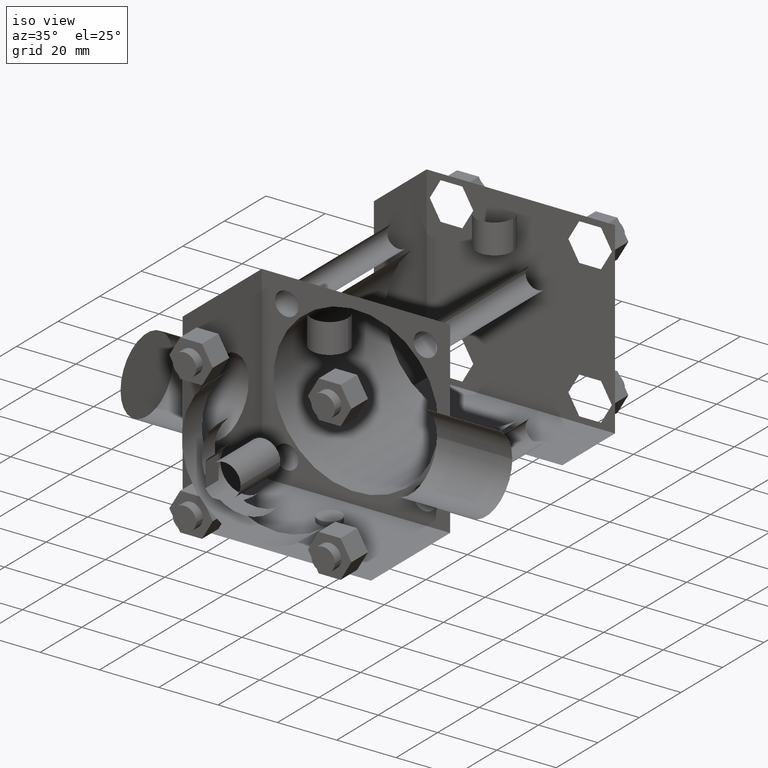
[diagram: clean part render]
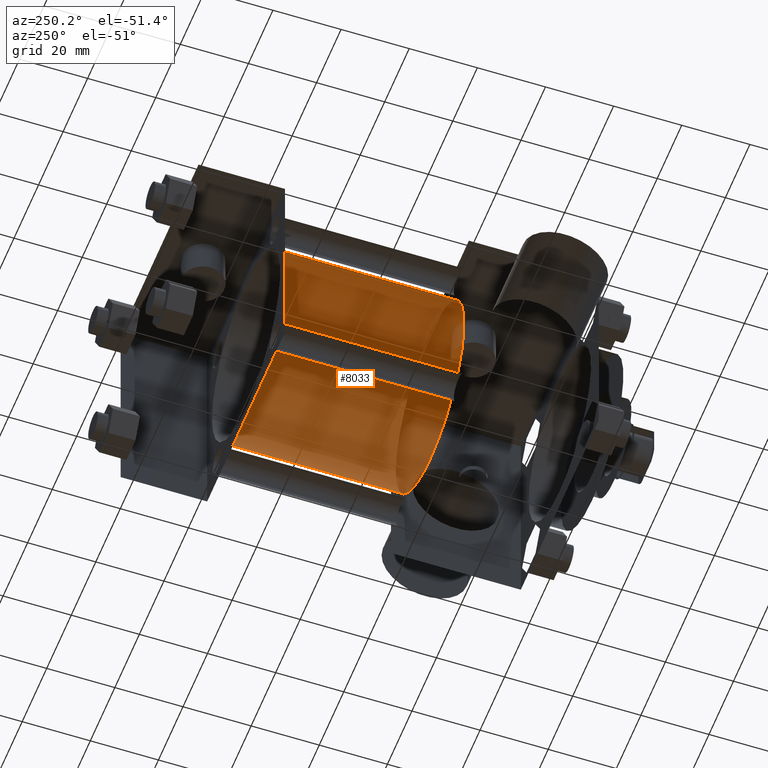
[diagram: tour spotlight — one face highlighted and labeled with its STEP entity id]
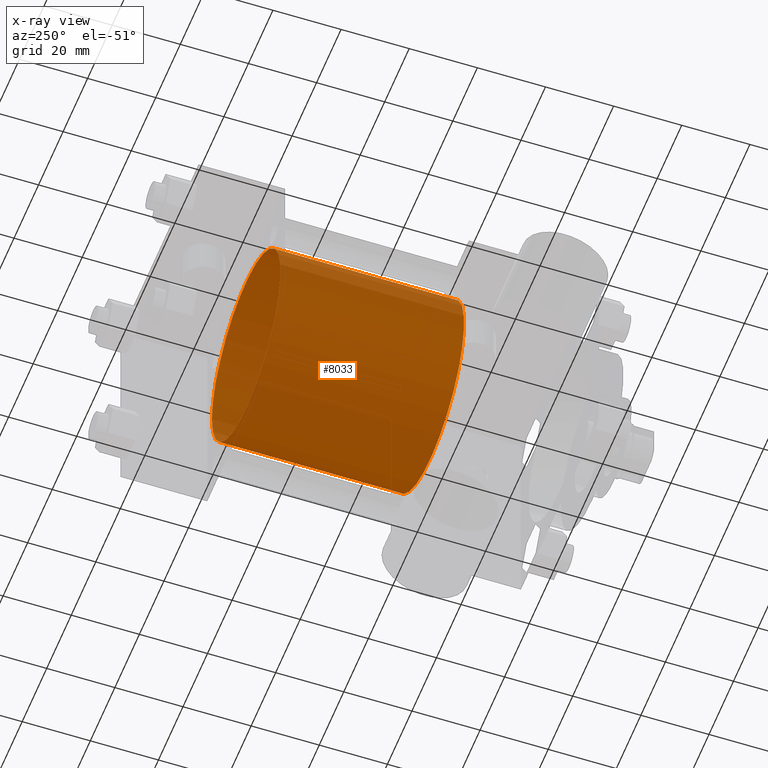
[diagram: x-ray of the same camera — body ghosted, this tour face saturated]
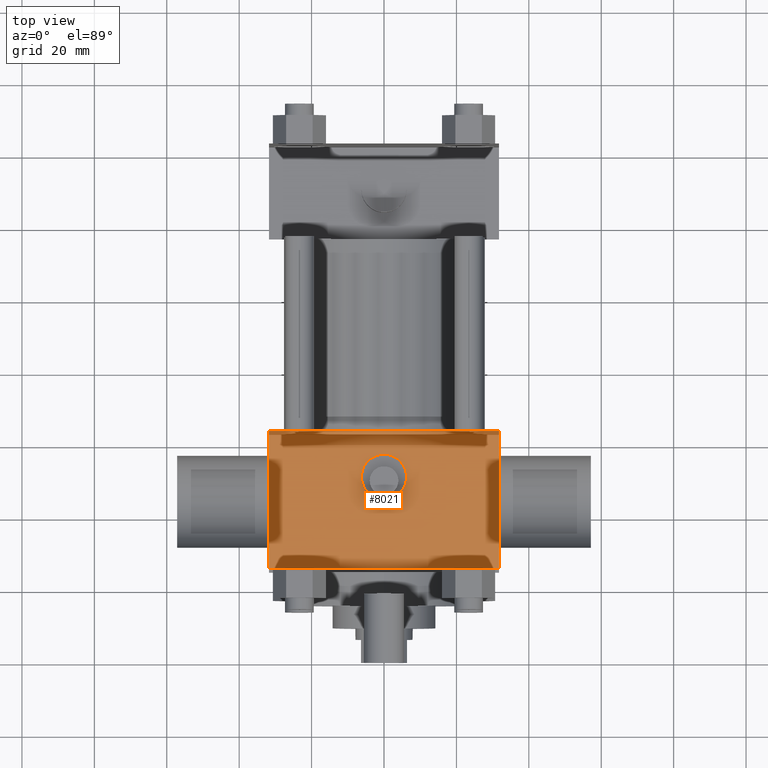
[diagram: tour spotlight — one face highlighted and labeled with its STEP entity id]
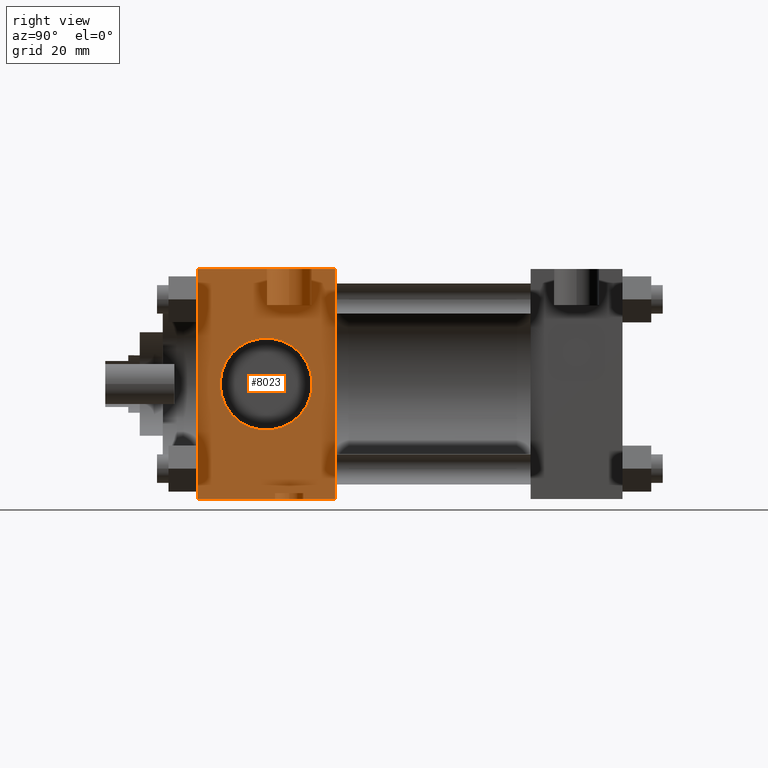
[diagram: tour spotlight — one face highlighted and labeled with its STEP entity id]
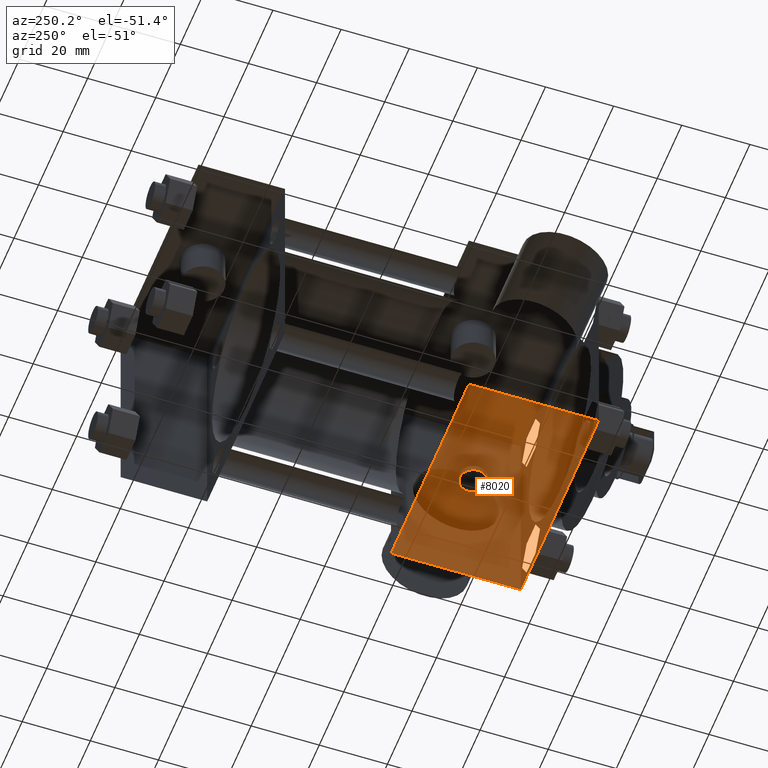
[diagram: tour spotlight — one face highlighted and labeled with its STEP entity id]
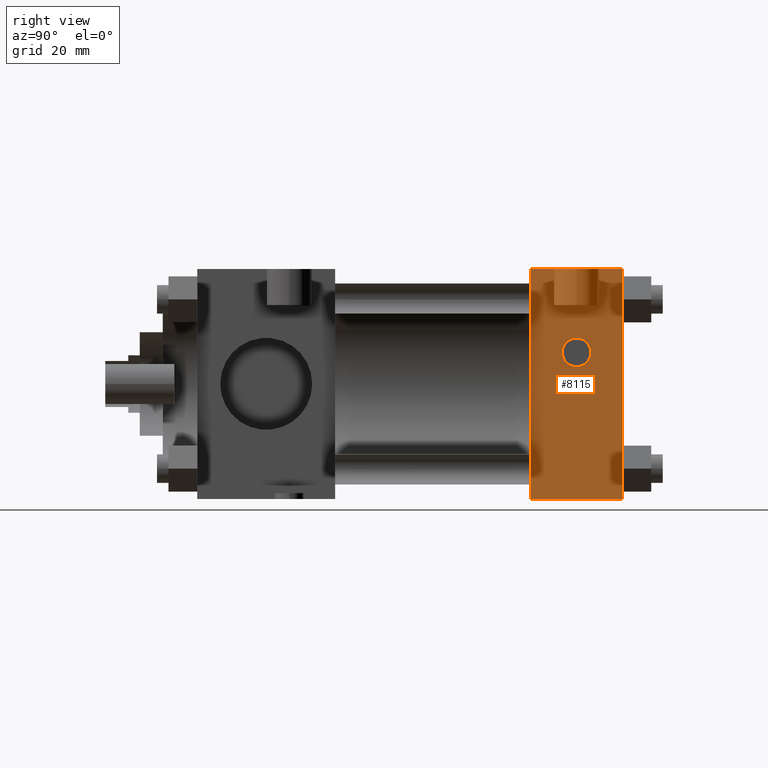
[diagram: tour spotlight — one face highlighted and labeled with its STEP entity id]
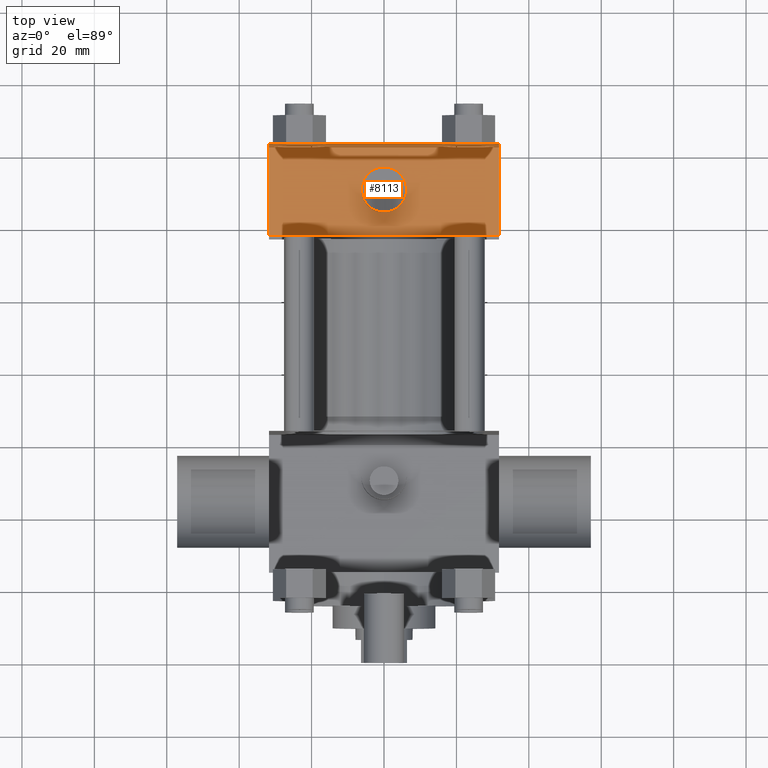
[diagram: tour spotlight — one face highlighted and labeled with its STEP entity id]
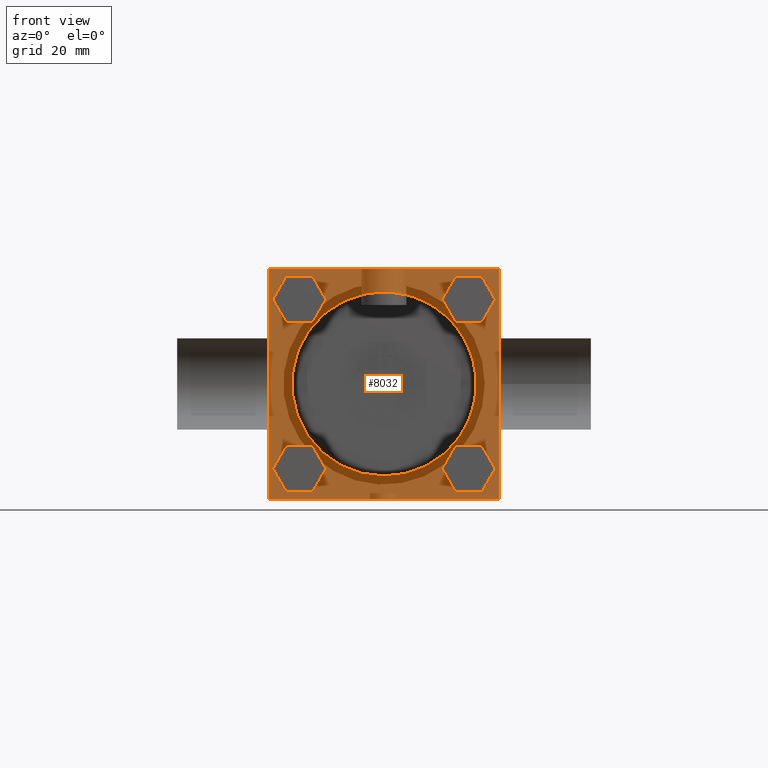
[diagram: tour spotlight — one face highlighted and labeled with its STEP entity id]
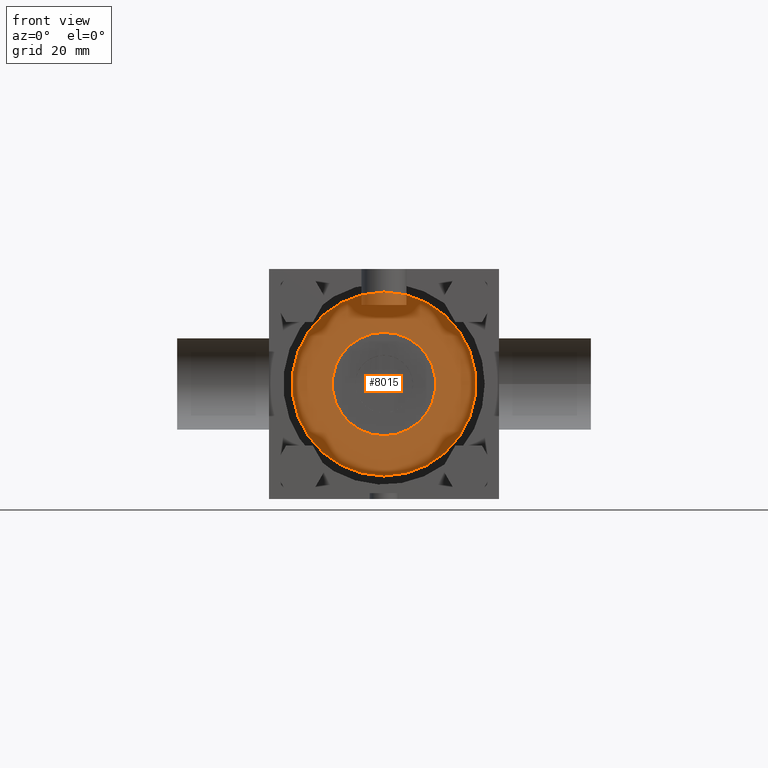
[diagram: tour spotlight — one face highlighted and labeled with its STEP entity id]
A machine part: a face-by-face anatomy tour. The part has 122 B-rep faces; the first image is the clean iso view, then the 8 largest visible faces are spotlighted one at a time (largest first), each with its STEP entity span.

Face 1 — auxiliary view, entity #8033. An x-ray twin of the same camera follows (body ghosted, this face saturated) — the face is partly hidden behind the body. In plain terms, the highlighted cylindrical surface (bore or boss wall) has radius 27.813 mm, axis along (0, -1, 0).
Definition (entity closure, byte-faithful):
#503=EDGE_CURVE('',#509,#509,#504,.T.);
#504=CIRCLE('',#505,2.781300000E+001);
#505=AXIS2_PLACEMENT_3D('',#506,#507,#508);
#506=CARTESIAN_POINT('',(0.000000000E+000,6.350000000E+001,0.000000000E+000));
#507=DIRECTION('',(0.0E+000,1.0E+000,0.0E+000));
#508=DIRECTION('',(1.0E+000,0.0E+000,0.0E+000));
#509=VERTEX_POINT('',#510);
#510=CARTESIAN_POINT('',(2.781300000E+001,6.350000000E+001,0.000000000E+000));
#2364=FACE_OUTER_BOUND('',#2366,.T.);
#2365=FACE_BOUND('',#2367,.T.);
#2366=EDGE_LOOP('',(#2368));
#2367=EDGE_LOOP('',(#2377));
#2368=ORIENTED_EDGE('',*,*,#2369,.F.);
#2369=EDGE_CURVE('',#2375,#2375,#2370,.T.);
#2370=CIRCLE('',#2371,2.781300000E+001);
#2371=AXIS2_PLACEMENT_3D('',#2372,#2373,#2374);
#2372=CARTESIAN_POINT('',(0.000000000E+000,1.174750000E+002,0.000000000E+000));
#2373=DIRECTION('',(0.0E+000,1.0E+000,0.0E+000));
#2374=DIRECTION('',(1.0E+000,0.0E+000,0.0E+000));
#2375=VERTEX_POINT('',#2376);
#2376=CARTESIAN_POINT('',(2.781300000E+001,1.174750000E+002,0.000000000E+000));
#2377=ORIENTED_EDGE('',*,*,#503,.F.);
#2378=CYLINDRICAL_SURFACE('',#2379,2.781300000E+001);
#2379=AXIS2_PLACEMENT_3D('',#2380,#2381,#2382);
#2380=CARTESIAN_POINT('',(0.000000000E+000,1.174750000E+002,0.000000000E+000));
#2381=DIRECTION('',(0.0E+000,-1.0E+000,0.0E+000));
#2382=DIRECTION('',(0.0E+000,0.0E+000,-1.0E+000));
#8033=ADVANCED_FACE('',(#2364,#2365),#2378,.T.);

Face 2 — top view, entity #8021. In plain terms, the highlighted planar face has unit normal (0, 0, 1).
Definition (entity closure, byte-faithful):
#529=VERTEX_POINT('',#530);
#530=CARTESIAN_POINT('',(-3.175000000E+001,6.350000000E+001,3.175000000E+001));
#531=EDGE_CURVE('',#536,#529,#532,.T.);
#532=LINE('',#533,#534);
#533=CARTESIAN_POINT('',(3.175000000E+001,6.350000000E+001,3.175000000E+001));
#534=VECTOR('',#535,1.0E+000);
#535=DIRECTION('',(-1.0E+000,0.0E+000,0.0E+000));
#536=VERTEX_POINT('',#537);
#537=CARTESIAN_POINT('',(3.175000000E+001,6.350000000E+001,3.175000000E+001));
#625=FACE_OUTER_BOUND('',#627,.T.);
#626=FACE_BOUND('',#628,.T.);
#627=EDGE_LOOP('',(#629,#630,#631,#632));
#628=EDGE_LOOP('',(#652));
#629=ORIENTED_EDGE('',*,*,#633,.T.);
#630=ORIENTED_EDGE('',*,*,#640,.F.);
#631=ORIENTED_EDGE('',*,*,#647,.F.);
#632=ORIENTED_EDGE('',*,*,#531,.T.);
#633=EDGE_CURVE('',#529,#638,#634,.T.);
#634=LINE('',#635,#636);
#635=CARTESIAN_POINT('',(-3.175000000E+001,6.350000000E+001,3.175000000E+001));
#636=VECTOR('',#637,1.0E+000);
#637=DIRECTION('',(0.0E+000,-1.0E+000,0.0E+000));
#638=VERTEX_POINT('',#639);
#639=CARTESIAN_POINT('',(-3.175000000E+001,2.540000000E+001,3.175000000E+001));
#640=EDGE_CURVE('',#645,#638,#641,.T.);
#641=LINE('',#642,#643);
#642=CARTESIAN_POINT('',(3.175000000E+001,2.540000000E+001,3.175000000E+001));
#643=VECTOR('',#644,1.0E+000);
#644=DIRECTION('',(-1.0E+000,0.0E+000,0.0E+000));
#645=VERTEX_POINT('',#646);
#646=CARTESIAN_POINT('',(3.175000000E+001,2.540000000E+001,3.175000000E+001));
#647=EDGE_CURVE('',#536,#645,#648,.T.);
#648=LINE('',#649,#650);
#649=CARTESIAN_POINT('',(3.175000000E+001,6.350000000E+001,3.175000000E+001));
#650=VECTOR('',#651,1.0E+000);
#651=DIRECTION('',(0.0E+000,-1.0E+000,0.0E+000));
#652=ORIENTED_EDGE('',*,*,#653,.T.);
#653=EDGE_CURVE('',#659,#659,#654,.T.);
#654=CIRCLE('',#655,6.243320000E+000);
#655=AXIS2_PLACEMENT_3D('',#656,#657,#658);
#656=CARTESIAN_POINT('',(0.000000000E+000,5.080000000E+001,3.175000000E+001));
#657=DIRECTION('',(0.0E+000,0.0E+000,-1.0E+000));
#658=DIRECTION('',(1.0E+000,0.0E+000,0.0E+000));
#659=VERTEX_POINT('',#660);
#660=CARTESIAN_POINT('',(6.243320000E+000,5.080000000E+001,3.175000000E+001));
#661=PLANE('',#662);
#662=AXIS2_PLACEMENT_3D('',#663,#664,#665);
#663=CARTESIAN_POINT('',(3.175000000E+001,6.350000000E+001,3.175000000E+001));
#664=DIRECTION('',(0.0E+000,0.0E+000,1.0E+000));
#665=DIRECTION('',(1.0E+000,0.0E+000,0.0E+000));
#8021=ADVANCED_FACE('',(#625,#626),#661,.T.);

Face 3 — right view, entity #8023. In plain terms, the highlighted planar face has unit normal (1, 0, 0).
Definition (entity closure, byte-faithful):
#521=VERTEX_POINT('',#523);
#523=CARTESIAN_POINT('',(3.175000000E+001,6.350000000E+001,-3.175000000E+001));
#536=VERTEX_POINT('',#537);
#537=CARTESIAN_POINT('',(3.175000000E+001,6.350000000E+001,3.175000000E+001));
#538=EDGE_CURVE('',#521,#536,#539,.T.);
#539=LINE('',#540,#541);
#540=CARTESIAN_POINT('',(3.175000000E+001,6.350000000E+001,-3.175000000E+001));
#541=VECTOR('',#542,1.0E+000);
#542=DIRECTION('',(0.0E+000,0.0E+000,1.0E+000));
#592=EDGE_CURVE('',#521,#597,#593,.T.);
#593=LINE('',#594,#595);
#594=CARTESIAN_POINT('',(3.175000000E+001,6.350000000E+001,-3.175000000E+001));
#595=VECTOR('',#596,1.0E+000);
#596=DIRECTION('',(0.0E+000,-1.0E+000,0.0E+000));
#597=VERTEX_POINT('',#598);
#598=CARTESIAN_POINT('',(3.175000000E+001,2.540000000E+001,-3.175000000E+001));
#645=VERTEX_POINT('',#646);
#646=CARTESIAN_POINT('',(3.175000000E+001,2.540000000E+001,3.175000000E+001));
#647=EDGE_CURVE('',#536,#645,#648,.T.);
#648=LINE('',#649,#650);
#649=CARTESIAN_POINT('',(3.175000000E+001,6.350000000E+001,3.175000000E+001));
#650=VECTOR('',#651,1.0E+000);
#651=DIRECTION('',(0.0E+000,-1.0E+000,0.0E+000));
#693=FACE_OUTER_BOUND('',#695,.T.);
#694=FACE_BOUND('',#696,.T.);
#695=EDGE_LOOP('',(#697,#698,#699,#700));
#696=EDGE_LOOP('',(#706));
#697=ORIENTED_EDGE('',*,*,#647,.T.);
#698=ORIENTED_EDGE('',*,*,#701,.F.);
#699=ORIENTED_EDGE('',*,*,#592,.F.);
#700=ORIENTED_EDGE('',*,*,#538,.T.);
#701=EDGE_CURVE('',#597,#645,#702,.T.);
#702=LINE('',#703,#704);
#703=CARTESIAN_POINT('',(3.175000000E+001,2.540000000E+001,-3.175000000E+001));
#704=VECTOR('',#705,1.0E+000);
#705=DIRECTION('',(0.0E+000,0.0E+000,1.0E+000));
#706=ORIENTED_EDGE('',*,*,#707,.T.);
#707=EDGE_CURVE('',#713,#713,#708,.T.);
#708=CIRCLE('',#709,1.270000000E+001);
#709=AXIS2_PLACEMENT_3D('',#710,#711,#712);
#710=CARTESIAN_POINT('',(3.175000000E+001,4.445000000E+001,0.000000000E+000));
#711=DIRECTION('',(-1.0E+000,0.0E+000,0.0E+000));
#712=DIRECTION('',(0.0E+000,1.0E+000,0.0E+000));
#713=VERTEX_POINT('',#714);
#714=CARTESIAN_POINT('',(3.175000000E+001,5.715000000E+001,0.000000000E+000));
#715=PLANE('',#716);
#716=AXIS2_PLACEMENT_3D('',#717,#718,#719);
#717=CARTESIAN_POINT('',(3.175000000E+001,6.350000000E+001,-3.175000000E+001));
#718=DIRECTION('',(1.0E+000,0.0E+000,0.0E+000));
#719=DIRECTION('',(0.0E+000,0.0E+000,-1.0E+000));
#8023=ADVANCED_FACE('',(#693,#694),#715,.T.);

Face 4 — auxiliary view, entity #8020. In plain terms, the highlighted planar face has unit normal (0, 0, -1).
Definition (entity closure, byte-faithful):
#515=EDGE_CURVE('',#520,#521,#516,.T.);
#516=LINE('',#517,#518);
#517=CARTESIAN_POINT('',(-3.175000000E+001,6.350000000E+001,-3.175000000E+001));
#518=VECTOR('',#519,1.0E+000);
#519=DIRECTION('',(1.0E+000,0.0E+000,0.0E+000));
#520=VERTEX_POINT('',#522);
#521=VERTEX_POINT('',#523);
#522=CARTESIAN_POINT('',(-3.175000000E+001,6.350000000E+001,-3.175000000E+001));
#523=CARTESIAN_POINT('',(3.175000000E+001,6.350000000E+001,-3.175000000E+001));
#584=FACE_OUTER_BOUND('',#586,.T.);
#585=FACE_BOUND('',#587,.T.);
#586=EDGE_LOOP('',(#588,#589,#590,#591));
#587=EDGE_LOOP('',(#611));
#588=ORIENTED_EDGE('',*,*,#592,.T.);
#589=ORIENTED_EDGE('',*,*,#599,.F.);
#590=ORIENTED_EDGE('',*,*,#606,.F.);
#591=ORIENTED_EDGE('',*,*,#515,.T.);
#592=EDGE_CURVE('',#521,#597,#593,.T.);
#593=LINE('',#594,#595);
#594=CARTESIAN_POINT('',(3.175000000E+001,6.350000000E+001,-3.175000000E+001));
#595=VECTOR('',#596,1.0E+000);
#596=DIRECTION('',(0.0E+000,-1.0E+000,0.0E+000));
#597=VERTEX_POINT('',#598);
#598=CARTESIAN_POINT('',(3.175000000E+001,2.540000000E+001,-3.175000000E+001));
#599=EDGE_CURVE('',#604,#597,#600,.T.);
#600=LINE('',#601,#602);
#601=CARTESIAN_POINT('',(-3.175000000E+001,2.540000000E+001,-3.175000000E+001));
#602=VECTOR('',#603,1.0E+000);
#603=DIRECTION('',(1.0E+000,0.0E+000,0.0E+000));
#604=VERTEX_POINT('',#605);
#605=CARTESIAN_POINT('',(-3.175000000E+001,2.540000000E+001,-3.175000000E+001));
#606=EDGE_CURVE('',#520,#604,#607,.T.);
#607=LINE('',#608,#609);
#608=CARTESIAN_POINT('',(-3.175000000E+001,6.350000000E+001,-3.175000000E+001));
#609=VECTOR('',#610,1.0E+000);
#610=DIRECTION('',(0.0E+000,-1.0E+000,0.0E+000));
#611=ORIENTED_EDGE('',*,*,#612,.T.);
#612=EDGE_CURVE('',#618,#618,#613,.T.);
#613=CIRCLE('',#614,3.968750000E+000);
#614=AXIS2_PLACEMENT_3D('',#615,#616,#617);
#615=CARTESIAN_POINT('',(0.000000000E+000,5.080000000E+001,-3.175000000E+001));
#616=DIRECTION('',(0.0E+000,0.0E+000,1.0E+000));
#617=DIRECTION('',(1.0E+000,0.0E+000,0.0E+000));
#618=VERTEX_POINT('',#619);
#619=CARTESIAN_POINT('',(3.968750000E+000,5.080000000E+001,-3.175000000E+001));
#620=PLANE('',#621);
#621=AXIS2_PLACEMENT_3D('',#622,#623,#624);
#622=CARTESIAN_POINT('',(-3.175000000E+001,6.350000000E+001,-3.175000000E+001));
#623=DIRECTION('',(0.0E+000,0.0E+000,-1.0E+000));
#624=DIRECTION('',(-1.0E+000,0.0E+000,0.0E+000));
#8020=ADVANCED_FACE('',(#584,#585),#620,.T.);

Face 5 — right view, entity #8115. In plain terms, the highlighted planar face has unit normal (1, 0, 0).
Definition (entity closure, byte-faithful):
#4475=VERTEX_POINT('',#4477);
#4477=CARTESIAN_POINT('',(3.175000000E+001,1.428750000E+002,-3.175000000E+001));
#4490=VERTEX_POINT('',#4491);
#4491=CARTESIAN_POINT('',(3.175000000E+001,1.428750000E+002,3.175000000E+001));
#4492=EDGE_CURVE('',#4475,#4490,#4493,.T.);
#4493=LINE('',#4494,#4495);
#4494=CARTESIAN_POINT('',(3.175000000E+001,1.428750000E+002,-3.175000000E+001));
#4495=VECTOR('',#4496,1.0E+000);
#4496=DIRECTION('',(0.0E+000,0.0E+000,1.0E+000));
#4648=VERTEX_POINT('',#4650);
#4650=CARTESIAN_POINT('',(3.175000000E+001,1.174750000E+002,-3.175000000E+001));
#4651=EDGE_CURVE('',#4648,#4656,#4652,.T.);
#4652=LINE('',#4653,#4654);
#4653=CARTESIAN_POINT('',(3.175000000E+001,1.174750000E+002,-3.175000000E+001));
#4654=VECTOR('',#4655,1.0E+000);
#4655=DIRECTION('',(0.0E+000,0.0E+000,1.0E+000));
#4656=VERTEX_POINT('',#4657);
#4657=CARTESIAN_POINT('',(3.175000000E+001,1.174750000E+002,3.175000000E+001));
#4697=EDGE_CURVE('',#4475,#4648,#4698,.T.);
#4698=LINE('',#4699,#4700);
#4699=CARTESIAN_POINT('',(3.175000000E+001,1.428750000E+002,-3.175000000E+001));
#4700=VECTOR('',#4701,1.0E+000);
#4701=DIRECTION('',(0.0E+000,-1.0E+000,0.0E+000));
#4724=EDGE_CURVE('',#4490,#4656,#4725,.T.);
#4725=LINE('',#4726,#4727);
#4726=CARTESIAN_POINT('',(3.175000000E+001,1.428750000E+002,3.175000000E+001));
#4727=VECTOR('',#4728,1.0E+000);
#4728=DIRECTION('',(0.0E+000,-1.0E+000,0.0E+000));
#4770=FACE_OUTER_BOUND('',#4772,.T.);
#4771=FACE_BOUND('',#4773,.T.);
#4772=EDGE_LOOP('',(#4774,#4775,#4776,#4777));
#4773=EDGE_LOOP('',(#4778));
#4774=ORIENTED_EDGE('',*,*,#4651,.F.);
#4775=ORIENTED_EDGE('',*,*,#4697,.F.);
#4776=ORIENTED_EDGE('',*,*,#4492,.T.);
#4777=ORIENTED_EDGE('',*,*,#4724,.T.);
#4778=ORIENTED_EDGE('',*,*,#4779,.T.);
#4779=EDGE_CURVE('',#4785,#4785,#4780,.T.);
#4780=CIRCLE('',#4781,3.968750000E+000);
#4781=AXIS2_PLACEMENT_3D('',#4782,#4783,#4784);
#4782=CARTESIAN_POINT('',(3.175000000E+001,1.301750000E+002,8.732520000E+000));
#4783=DIRECTION('',(-1.0E+000,0.0E+000,0.0E+000));
#4784=DIRECTION('',(0.0E+000,1.0E+000,0.0E+000));
#4785=VERTEX_POINT('',#4786);
#4786=CARTESIAN_POINT('',(3.175000000E+001,1.341437500E+002,8.732520000E+000));
#4787=PLANE('',#4788);
#4788=AXIS2_PLACEMENT_3D('',#4789,#4790,#4791);
#4789=CARTESIAN_POINT('',(3.175000000E+001,1.428750000E+002,-3.175000000E+001));
#4790=DIRECTION('',(1.0E+000,0.0E+000,0.0E+000));
#4791=DIRECTION('',(0.0E+000,0.0E+000,-1.0E+000));
#8115=ADVANCED_FACE('',(#4770,#4771),#4787,.T.);

Face 6 — top view, entity #8113. In plain terms, the highlighted planar face has unit normal (0, 0, 1).
Definition (entity closure, byte-faithful):
#4483=VERTEX_POINT('',#4484);
#4484=CARTESIAN_POINT('',(-3.175000000E+001,1.428750000E+002,3.175000000E+001));
#4485=EDGE_CURVE('',#4490,#4483,#4486,.T.);
#4486=LINE('',#4487,#4488);
#4487=CARTESIAN_POINT('',(3.175000000E+001,1.428750000E+002,3.175000000E+001));
#4488=VECTOR('',#4489,1.0E+000);
#4489=DIRECTION('',(-1.0E+000,0.0E+000,0.0E+000));
#4490=VERTEX_POINT('',#4491);
#4491=CARTESIAN_POINT('',(3.175000000E+001,1.428750000E+002,3.175000000E+001));
#4656=VERTEX_POINT('',#4657);
#4657=CARTESIAN_POINT('',(3.175000000E+001,1.174750000E+002,3.175000000E+001));
#4658=EDGE_CURVE('',#4656,#4663,#4659,.T.);
#4659=LINE('',#4660,#4661);
#4660=CARTESIAN_POINT('',(3.175000000E+001,1.174750000E+002,3.175000000E+001));
#4661=VECTOR('',#4662,1.0E+000);
#4662=DIRECTION('',(-1.0E+000,0.0E+000,0.0E+000));
#4663=VERTEX_POINT('',#4664);
#4664=CARTESIAN_POINT('',(-3.175000000E+001,1.174750000E+002,3.175000000E+001));
#4716=FACE_OUTER_BOUND('',#4718,.T.);
#4717=FACE_BOUND('',#4719,.T.);
#4718=EDGE_LOOP('',(#4720,#4721,#4722,#4723));
#4719=EDGE_LOOP('',(#4734));
#4720=ORIENTED_EDGE('',*,*,#4658,.F.);
#4721=ORIENTED_EDGE('',*,*,#4724,.F.);
#4722=ORIENTED_EDGE('',*,*,#4485,.T.);
#4723=ORIENTED_EDGE('',*,*,#4729,.T.);
#4724=EDGE_CURVE('',#4490,#4656,#4725,.T.);
#4725=LINE('',#4726,#4727);
#4726=CARTESIAN_POINT('',(3.175000000E+001,1.428750000E+002,3.175000000E+001));
#4727=VECTOR('',#4728,1.0E+000);
#4728=DIRECTION('',(0.0E+000,-1.0E+000,0.0E+000));
#4729=EDGE_CURVE('',#4483,#4663,#4730,.T.);
#4730=LINE('',#4731,#4732);
#4731=CARTESIAN_POINT('',(-3.175000000E+001,1.428750000E+002,3.175000000E+001));
#4732=VECTOR('',#4733,1.0E+000);
#4733=DIRECTION('',(0.0E+000,-1.0E+000,0.0E+000));
#4734=ORIENTED_EDGE('',*,*,#4735,.T.);
#4735=EDGE_CURVE('',#4741,#4741,#4736,.T.);
#4736=CIRCLE('',#4737,6.243320000E+000);
#4737=AXIS2_PLACEMENT_3D('',#4738,#4739,#4740);
#4738=CARTESIAN_POINT('',(0.000000000E+000,1.301750000E+002,3.175000000E+001));
#4739=DIRECTION('',(0.0E+000,0.0E+000,-1.0E+000));
#4740=DIRECTION('',(1.0E+000,0.0E+000,0.0E+000));
#4741=VERTEX_POINT('',#4742);
#4742=CARTESIAN_POINT('',(6.243320000E+000,1.301750000E+002,3.175000000E+001));
#4743=PLANE('',#4744);
#4744=AXIS2_PLACEMENT_3D('',#4745,#4746,#4747);
#4745=CARTESIAN_POINT('',(3.175000000E+001,1.428750000E+002,3.175000000E+001));
#4746=DIRECTION('',(0.0E+000,0.0E+000,1.0E+000));
#4747=DIRECTION('',(1.0E+000,0.0E+000,0.0E+000));
#8113=ADVANCED_FACE('',(#4716,#4717),#4743,.T.);

Face 7 — front view, entity #8032. In plain terms, the highlighted planar face has unit normal (0, 1, 0).
Definition (entity closure, byte-faithful):
#451=EDGE_CURVE('',#457,#457,#452,.T.);
#452=CIRCLE('',#453,2.540000000E+001);
#453=AXIS2_PLACEMENT_3D('',#454,#455,#456);
#454=CARTESIAN_POINT('',(0.000000000E+000,2.540000000E+001,0.000000000E+000));
#455=DIRECTION('',(0.0E+000,1.0E+000,0.0E+000));
#456=DIRECTION('',(1.0E+000,0.0E+000,0.0E+000));
#457=VERTEX_POINT('',#458);
#458=CARTESIAN_POINT('',(2.540000000E+001,2.540000000E+001,0.000000000E+000));
#597=VERTEX_POINT('',#598);
#598=CARTESIAN_POINT('',(3.175000000E+001,2.540000000E+001,-3.175000000E+001));
#599=EDGE_CURVE('',#604,#597,#600,.T.);
#600=LINE('',#601,#602);
#601=CARTESIAN_POINT('',(-3.175000000E+001,2.540000000E+001,-3.175000000E+001));
#602=VECTOR('',#603,1.0E+000);
#603=DIRECTION('',(1.0E+000,0.0E+000,0.0E+000));
#604=VERTEX_POINT('',#605);
#605=CARTESIAN_POINT('',(-3.175000000E+001,2.540000000E+001,-3.175000000E+001));
#638=VERTEX_POINT('',#639);
#639=CARTESIAN_POINT('',(-3.175000000E+001,2.540000000E+001,3.175000000E+001));
#640=EDGE_CURVE('',#645,#638,#641,.T.);
#641=LINE('',#642,#643);
#642=CARTESIAN_POINT('',(3.175000000E+001,2.540000000E+001,3.175000000E+001));
#643=VECTOR('',#644,1.0E+000);
#644=DIRECTION('',(-1.0E+000,0.0E+000,0.0E+000));
#645=VERTEX_POINT('',#646);
#646=CARTESIAN_POINT('',(3.175000000E+001,2.540000000E+001,3.175000000E+001));
#674=EDGE_CURVE('',#638,#604,#675,.T.);
#675=LINE('',#676,#677);
#676=CARTESIAN_POINT('',(-3.175000000E+001,2.540000000E+001,3.175000000E+001));
#677=VECTOR('',#678,1.0E+000);
#678=DIRECTION('',(0.0E+000,0.0E+000,-1.0E+000));
#701=EDGE_CURVE('',#597,#645,#702,.T.);
#702=LINE('',#703,#704);
#703=CARTESIAN_POINT('',(3.175000000E+001,2.540000000E+001,-3.175000000E+001));
#704=VECTOR('',#705,1.0E+000);
#705=DIRECTION('',(0.0E+000,0.0E+000,1.0E+000));
#828=FACE_OUTER_BOUND('',#834,.T.);
#829=FACE_BOUND('',#835,.T.);
#830=FACE_BOUND('',#836,.T.);
#831=FACE_BOUND('',#837,.T.);
#832=FACE_BOUND('',#838,.T.);
#833=FACE_BOUND('',#839,.T.);
#834=EDGE_LOOP('',(#840,#841,#842,#843,#844,#845));
#835=EDGE_LOOP('',(#888,#889,#890,#891,#892,#893));
#836=EDGE_LOOP('',(#936,#937,#938,#939));
#837=EDGE_LOOP('',(#940));
#838=EDGE_LOOP('',(#949,#950,#951,#952,#953,#954));
#839=EDGE_LOOP('',(#997,#998,#999,#1000,#1001,#1002));
#840=ORIENTED_EDGE('',*,*,#846,.F.);
#841=ORIENTED_EDGE('',*,*,#855,.F.);
#842=ORIENTED_EDGE('',*,*,#862,.F.);
#843=ORIENTED_EDGE('',*,*,#869,.F.);
#844=ORIENTED_EDGE('',*,*,#876,.F.);
#845=ORIENTED_EDGE('',*,*,#883,.F.);
#846=EDGE_CURVE('',#851,#852,#847,.T.);
#847=LINE('',#848,#849);
#848=CARTESIAN_POINT('',(-3.070034655E+001,2.540000000E+001,-2.336800000E+001));
#849=VECTOR('',#850,1.0E+000);
#850=DIRECTION('',(5.0E-001,0.0E+000,-8.66025403784439E-001));
#851=VERTEX_POINT('',#853);
#852=VERTEX_POINT('',#854);
#853=CARTESIAN_POINT('',(-3.070034655E+001,2.540000000E+001,-2.336800000E+001));
#854=CARTESIAN_POINT('',(-2.703417889E+001,2.540000000E+001,-2.971799514E+001));
#855=EDGE_CURVE('',#860,#851,#856,.T.);
#856=LINE('',#857,#858);
#857=CARTESIAN_POINT('',(-2.703417889E+001,2.540000000E+001,-1.701800486E+001));
#858=VECTOR('',#859,1.0E+000);
#859=DIRECTION('',(-5.0E-001,0.0E+000,-8.66025403784439E-001));
#860=VERTEX_POINT('',#861);
#861=CARTESIAN_POINT('',(-2.703417889E+001,2.540000000E+001,-1.701800486E+001));
#862=EDGE_CURVE('',#867,#860,#863,.T.);
#863=LINE('',#864,#865);
#864=CARTESIAN_POINT('',(-1.970182111E+001,2.540000000E+001,-1.701800486E+001));
#865=VECTOR('',#866,1.0E+000);
#866=DIRECTION('',(-1.0E+000,0.0E+000,0.0E+000));
#867=VERTEX_POINT('',#868);
#868=CARTESIAN_POINT('',(-1.970182111E+001,2.540000000E+001,-1.701800486E+001));
#869=EDGE_CURVE('',#874,#867,#870,.T.);
#870=LINE('',#871,#872);
#871=CARTESIAN_POINT('',(-1.603565345E+001,2.540000000E+001,-2.336800000E+001));
#872=VECTOR('',#873,1.0E+000);
#873=DIRECTION('',(-5.0E-001,0.0E+000,8.66025403784439E-001));
#874=VERTEX_POINT('',#875);
#875=CARTESIAN_POINT('',(-1.603565345E+001,2.540000000E+001,-2.336800000E+001));
#876=EDGE_CURVE('',#881,#874,#877,.T.);
#877=LINE('',#878,#879);
#878=CARTESIAN_POINT('',(-1.970182111E+001,2.540000000E+001,-2.971799514E+001));
#879=VECTOR('',#880,1.0E+000);
#880=DIRECTION('',(5.0E-001,0.0E+000,8.66025403784439E-001));
#881=VERTEX_POINT('',#882);
#882=CARTESIAN_POINT('',(-1.970182111E+001,2.540000000E+001,-2.971799514E+001));
#883=EDGE_CURVE('',#852,#881,#884,.T.);
#884=LINE('',#885,#886);
#885=CARTESIAN_POINT('',(-2.703417889E+001,2.540000000E+001,-2.971799514E+001));
#886=VECTOR('',#887,1.0E+000);
#887=DIRECTION('',(1.0E+000,0.0E+000,0.0E+000));
#888=ORIENTED_EDGE('',*,*,#894,.F.);
#889=ORIENTED_EDGE('',*,*,#903,.F.);
#890=ORIENTED_EDGE('',*,*,#910,.F.);
#891=ORIENTED_EDGE('',*,*,#917,.F.);
#892=ORIENTED_EDGE('',*,*,#924,.F.);
#893=ORIENTED_EDGE('',*,*,#931,.F.);
#894=EDGE_CURVE('',#899,#900,#895,.T.);
#895=LINE('',#896,#897);
#896=CARTESIAN_POINT('',(-3.070034655E+001,2.540000000E+001,2.336800000E+001));
#897=VECTOR('',#898,1.0E+000);
#898=DIRECTION('',(5.0E-001,0.0E+000,-8.66025403784439E-001));
#899=VERTEX_POINT('',#901);
#900=VERTEX_POINT('',#902);
#901=CARTESIAN_POINT('',(-3.070034655E+001,2.540000000E+001,2.336800000E+001));
#902=CARTESIAN_POINT('',(-2.703417889E+001,2.540000000E+001,1.701800486E+001));
#903=EDGE_CURVE('',#908,#899,#904,.T.);
#904=LINE('',#905,#906);
#905=CARTESIAN_POINT('',(-2.703417889E+001,2.540000000E+001,2.971799514E+001));
#906=VECTOR('',#907,1.0E+000);
#907=DIRECTION('',(-5.0E-001,0.0E+000,-8.66025403784439E-001));
#908=VERTEX_POINT('',#909);
#909=CARTESIAN_POINT('',(-2.703417889E+001,2.540000000E+001,2.971799514E+001));
#910=EDGE_CURVE('',#915,#908,#911,.T.);
#911=LINE('',#912,#913);
#912=CARTESIAN_POINT('',(-1.970182111E+001,2.540000000E+001,2.971799514E+001));
#913=VECTOR('',#914,1.0E+000);
#914=DIRECTION('',(-1.0E+000,0.0E+000,0.0E+000));
#915=VERTEX_POINT('',#916);
#916=CARTESIAN_POINT('',(-1.970182111E+001,2.540000000E+001,2.971799514E+001));
#917=EDGE_CURVE('',#922,#915,#918,.T.);
#918=LINE('',#919,#920);
#919=CARTESIAN_POINT('',(-1.603565345E+001,2.540000000E+001,2.336800000E+001));
#920=VECTOR('',#921,1.0E+000);
#921=DIRECTION('',(-5.0E-001,0.0E+000,8.66025403784439E-001));
#922=VERTEX_POINT('',#923);
#923=CARTESIAN_POINT('',(-1.603565345E+001,2.540000000E+001,2.336800000E+001));
#924=EDGE_CURVE('',#929,#922,#925,.T.);
#925=LINE('',#926,#927);
#926=CARTESIAN_POINT('',(-1.970182111E+001,2.540000000E+001,1.701800486E+001));
#927=VECTOR('',#928,1.0E+000);
#928=DIRECTION('',(5.0E-001,0.0E+000,8.66025403784439E-001));
#929=VERTEX_POINT('',#930);
#930=CARTESIAN_POINT('',(-1.970182111E+001,2.540000000E+001,1.701800486E+001));
#931=EDGE_CURVE('',#900,#929,#932,.T.);
#932=LINE('',#933,#934);
#933=CARTESIAN_POINT('',(-2.703417889E+001,2.540000000E+001,1.701800486E+001));
#934=VECTOR('',#935,1.0E+000);
#935=DIRECTION('',(1.0E+000,0.0E+000,0.0E+000));
#936=ORIENTED_EDGE('',*,*,#674,.T.);
#937=ORIENTED_EDGE('',*,*,#599,.T.);
#938=ORIENTED_EDGE('',*,*,#701,.T.);
#939=ORIENTED_EDGE('',*,*,#640,.T.);
#940=ORIENTED_EDGE('',*,*,#451,.F.);
#949=ORIENTED_EDGE('',*,*,#955,.F.);
#950=ORIENTED_EDGE('',*,*,#964,.F.);
#951=ORIENTED_EDGE('',*,*,#971,.F.);
#952=ORIENTED_EDGE('',*,*,#978,.F.);
#953=ORIENTED_EDGE('',*,*,#985,.F.);
#954=ORIENTED_EDGE('',*,*,#992,.F.);
#955=EDGE_CURVE('',#960,#961,#956,.T.);
#956=LINE('',#957,#958);
#957=CARTESIAN_POINT('',(1.603565345E+001,2.540000000E+001,-2.336800000E+001));
#958=VECTOR('',#959,1.0E+000);
#959=DIRECTION('',(5.0E-001,0.0E+000,-8.66025403784439E-001));
#960=VERTEX_POINT('',#962);
#961=VERTEX_POINT('',#963);
#962=CARTESIAN_POINT('',(1.603565345E+001,2.540000000E+001,-2.336800000E+001));
#963=CARTESIAN_POINT('',(1.970182111E+001,2.540000000E+001,-2.971799514E+001));
#964=EDGE_CURVE('',#969,#960,#965,.T.);
#965=LINE('',#966,#967);
#966=CARTESIAN_POINT('',(1.970182111E+001,2.540000000E+001,-1.701800486E+001));
#967=VECTOR('',#968,1.0E+000);
#968=DIRECTION('',(-5.0E-001,0.0E+000,-8.66025403784439E-001));
#969=VERTEX_POINT('',#970);
#970=CARTESIAN_POINT('',(1.970182111E+001,2.540000000E+001,-1.701800486E+001));
#971=EDGE_CURVE('',#976,#969,#972,.T.);
#972=LINE('',#973,#974);
#973=CARTESIAN_POINT('',(2.703417889E+001,2.540000000E+001,-1.701800486E+001));
#974=VECTOR('',#975,1.0E+000);
#975=DIRECTION('',(-1.0E+000,0.0E+000,0.0E+000));
#976=VERTEX_POINT('',#977);
#977=CARTESIAN_POINT('',(2.703417889E+001,2.540000000E+001,-1.701800486E+001));
#978=EDGE_CURVE('',#983,#976,#979,.T.);
#979=LINE('',#980,#981);
#980=CARTESIAN_POINT('',(3.070034655E+001,2.540000000E+001,-2.336800000E+001));
#981=VECTOR('',#982,1.0E+000);
#982=DIRECTION('',(-5.0E-001,0.0E+000,8.66025403784439E-001));
#983=VERTEX_POINT('',#984);
#984=CARTESIAN_POINT('',(3.070034655E+001,2.540000000E+001,-2.336800000E+001));
#985=EDGE_CURVE('',#990,#983,#986,.T.);
#986=LINE('',#987,#988);
#987=CARTESIAN_POINT('',(2.703417889E+001,2.540000000E+001,-2.971799514E+001));
#988=VECTOR('',#989,1.0E+000);
#989=DIRECTION('',(5.0E-001,0.0E+000,8.66025403784439E-001));
#990=VERTEX_POINT('',#991);
#991=CARTESIAN_POINT('',(2.703417889E+001,2.540000000E+001,-2.971799514E+001));
#992=EDGE_CURVE('',#961,#990,#993,.T.);
#993=LINE('',#994,#995);
#994=CARTESIAN_POINT('',(1.970182111E+001,2.540000000E+001,-2.971799514E+001));
#995=VECTOR('',#996,1.0E+000);
#996=DIRECTION('',(1.0E+000,0.0E+000,0.0E+000));
#997=ORIENTED_EDGE('',*,*,#1003,.F.);
#998=ORIENTED_EDGE('',*,*,#1012,.F.);
#999=ORIENTED_EDGE('',*,*,#1019,.F.);
#1000=ORIENTED_EDGE('',*,*,#1026,.F.);
#1001=ORIENTED_EDGE('',*,*,#1033,.F.);
#1002=ORIENTED_EDGE('',*,*,#1040,.F.);
#1003=EDGE_CURVE('',#1008,#1009,#1004,.T.);
#1004=LINE('',#1005,#1006);
#1005=CARTESIAN_POINT('',(1.603565345E+001,2.540000000E+001,2.336800000E+001));
#1006=VECTOR('',#1007,1.0E+000);
#1007=DIRECTION('',(5.0E-001,0.0E+000,-8.66025403784439E-001));
#1008=VERTEX_POINT('',#1010);
#1009=VERTEX_POINT('',#1011);
#1010=CARTESIAN_POINT('',(1.603565345E+001,2.540000000E+001,2.336800000E+001));
#1011=CARTESIAN_POINT('',(1.970182111E+001,2.540000000E+001,1.701800486E+001));
#1012=EDGE_CURVE('',#1017,#1008,#1013,.T.);
#1013=LINE('',#1014,#1015);
#1014=CARTESIAN_POINT('',(1.970182111E+001,2.540000000E+001,2.971799514E+001));
#1015=VECTOR('',#1016,1.0E+000);
#1016=DIRECTION('',(-5.0E-001,0.0E+000,-8.66025403784439E-001));
#1017=VERTEX_POINT('',#1018);
#1018=CARTESIAN_POINT('',(1.970182111E+001,2.540000000E+001,2.971799514E+001));
#1019=EDGE_CURVE('',#1024,#1017,#1020,.T.);
#1020=LINE('',#1021,#1022);
#1021=CARTESIAN_POINT('',(2.703417889E+001,2.540000000E+001,2.971799514E+001));
#1022=VECTOR('',#1023,1.0E+000);
#1023=DIRECTION('',(-1.0E+000,0.0E+000,0.0E+000));
#1024=VERTEX_POINT('',#1025);
#1025=CARTESIAN_POINT('',(2.703417889E+001,2.540000000E+001,2.971799514E+001));
#1026=EDGE_CURVE('',#1031,#1024,#1027,.T.);
#1027=LINE('',#1028,#1029);
#1028=CARTESIAN_POINT('',(3.070034655E+001,2.540000000E+001,2.336800000E+001));
#1029=VECTOR('',#1030,1.0E+000);
#1030=DIRECTION('',(-5.0E-001,0.0E+000,8.66025403784439E-001));
#1031=VERTEX_POINT('',#1032);
#1032=CARTESIAN_POINT('',(3.070034655E+001,2.540000000E+001,2.336800000E+001));
#1033=EDGE_CURVE('',#1038,#1031,#1034,.T.);
#1034=LINE('',#1035,#1036);
#1035=CARTESIAN_POINT('',(2.703417889E+001,2.540000000E+001,1.701800486E+001));
#1036=VECTOR('',#1037,1.0E+000);
#1037=DIRECTION('',(5.0E-001,0.0E+000,8.66025403784439E-001));
#1038=VERTEX_POINT('',#1039);
#1039=CARTESIAN_POINT('',(2.703417889E+001,2.540000000E+001,1.701800486E+001));
#1040=EDGE_CURVE('',#1009,#1038,#1041,.T.);
#1041=LINE('',#1042,#1043);
#1042=CARTESIAN_POINT('',(1.970182111E+001,2.540000000E+001,1.701800486E+001));
#1043=VECTOR('',#1044,1.0E+000);
#1044=DIRECTION('',(1.0E+000,0.0E+000,0.0E+000));
#1045=PLANE('',#1046);
#1046=AXIS2_PLACEMENT_3D('',#1047,#1048,#1049);
#1047=CARTESIAN_POINT('',(-3.175000000E+001,2.540000000E+001,3.175000000E+001));
#1048=DIRECTION('',(0.0E+000,1.0E+000,0.0E+000));
#1049=DIRECTION('',(0.0E+000,0.0E+000,1.0E+000));
#8032=ADVANCED_FACE('',(#828,#829,#830,#831,#832,#833),#1045,.F.);

Face 8 — front view, entity #8015. In plain terms, the highlighted planar face has unit normal (0, -1, 0).
Definition (entity closure, byte-faithful):
#400=FACE_OUTER_BOUND('',#402,.T.);
#401=FACE_BOUND('',#403,.T.);
#402=EDGE_LOOP('',(#404));
#403=EDGE_LOOP('',(#413));
#404=ORIENTED_EDGE('',*,*,#405,.T.);
#405=EDGE_CURVE('',#411,#411,#406,.T.);
#406=CIRCLE('',#407,2.540000000E+001);
#407=AXIS2_PLACEMENT_3D('',#408,#409,#410);
#408=CARTESIAN_POINT('',(0.000000000E+000,1.587500000E+001,0.000000000E+000));
#409=DIRECTION('',(0.0E+000,-1.0E+000,0.0E+000));
#410=DIRECTION('',(0.0E+000,0.0E+000,-1.0E+000));
#411=VERTEX_POINT('',#412);
#412=CARTESIAN_POINT('',(0.000000000E+000,1.587500000E+001,-2.540000000E+001));
#413=ORIENTED_EDGE('',*,*,#414,.F.);
#414=EDGE_CURVE('',#420,#420,#415,.T.);
#415=CIRCLE('',#416,1.428750000E+001);
#416=AXIS2_PLACEMENT_3D('',#417,#418,#419);
#417=CARTESIAN_POINT('',(0.000000000E+000,1.587500000E+001,0.000000000E+000));
#418=DIRECTION('',(0.0E+000,-1.0E+000,0.0E+000));
#419=DIRECTION('',(0.0E+000,0.0E+000,-1.0E+000));
#420=VERTEX_POINT('',#421);
#421=CARTESIAN_POINT('',(0.000000000E+000,1.587500000E+001,-1.428750000E+001));
#422=PLANE('',#423);
#423=AXIS2_PLACEMENT_3D('',#424,#425,#426);
#424=CARTESIAN_POINT('',(0.000000000E+000,1.587500000E+001,-1.428750000E+001));
#425=DIRECTION('',(0.0E+000,-1.0E+000,0.0E+000));
#426=DIRECTION('',(0.0E+000,0.0E+000,-1.0E+000));
#8015=ADVANCED_FACE('',(#400,#401),#422,.T.);